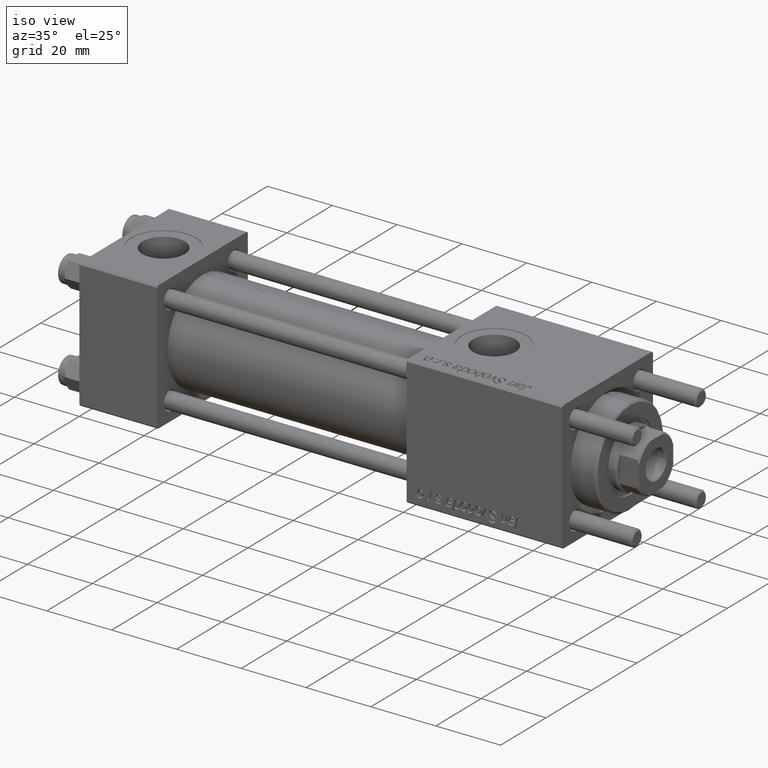
[diagram: clean part render]
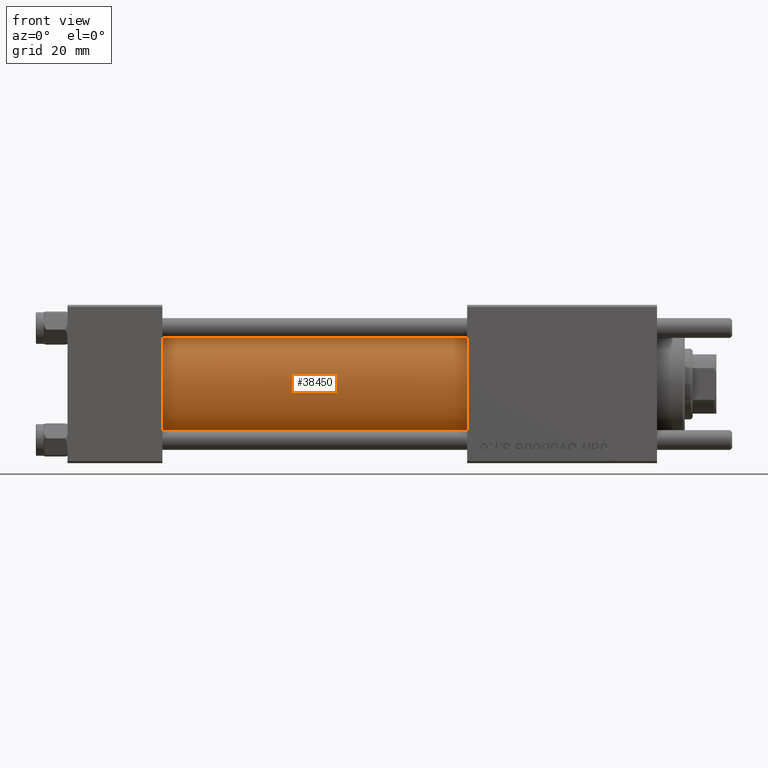
[diagram: tour spotlight — one face highlighted and labeled with its STEP entity id]
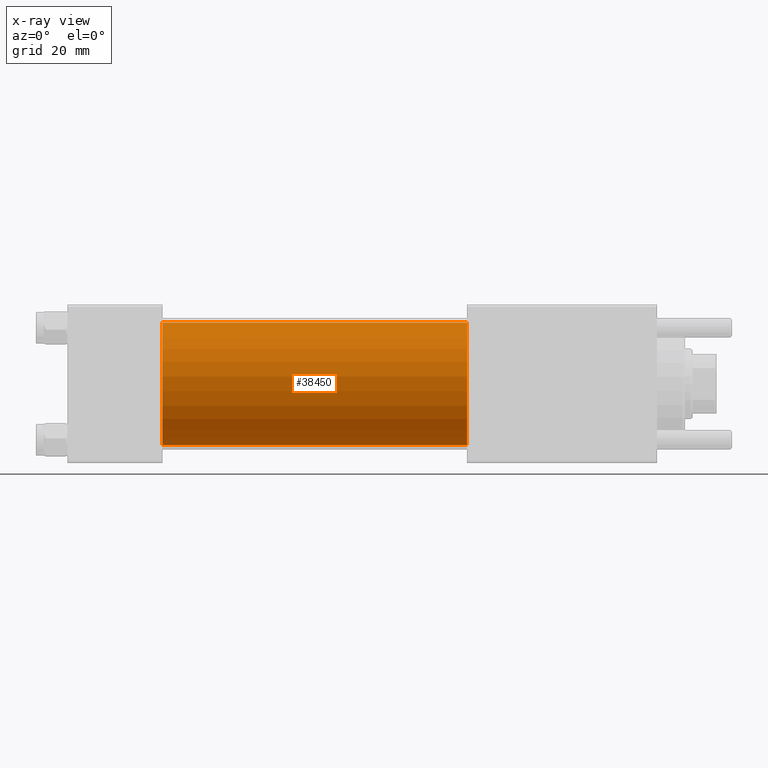
[diagram: x-ray of the same camera — body ghosted, this tour face saturated]
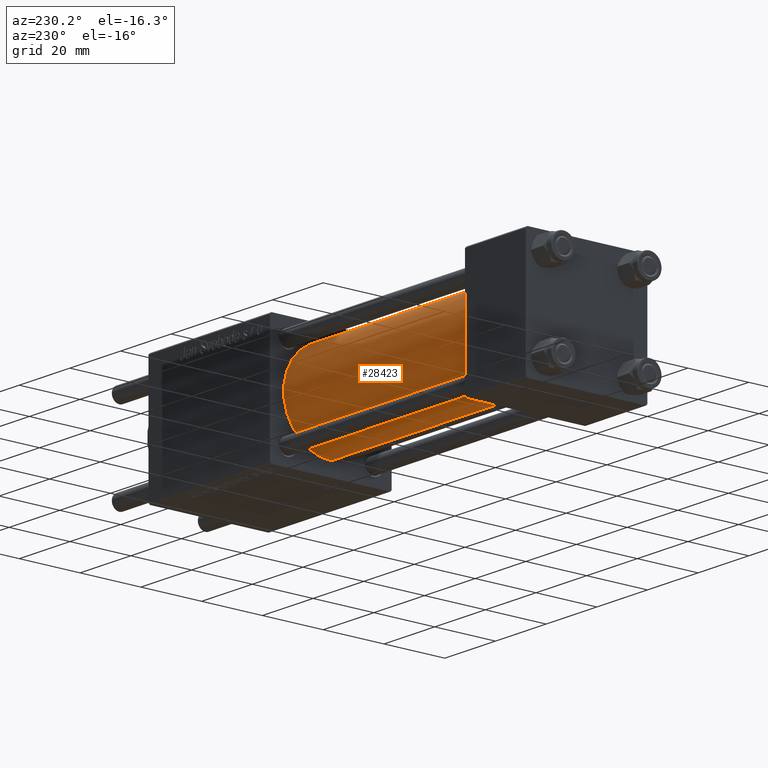
[diagram: tour spotlight — one face highlighted and labeled with its STEP entity id]
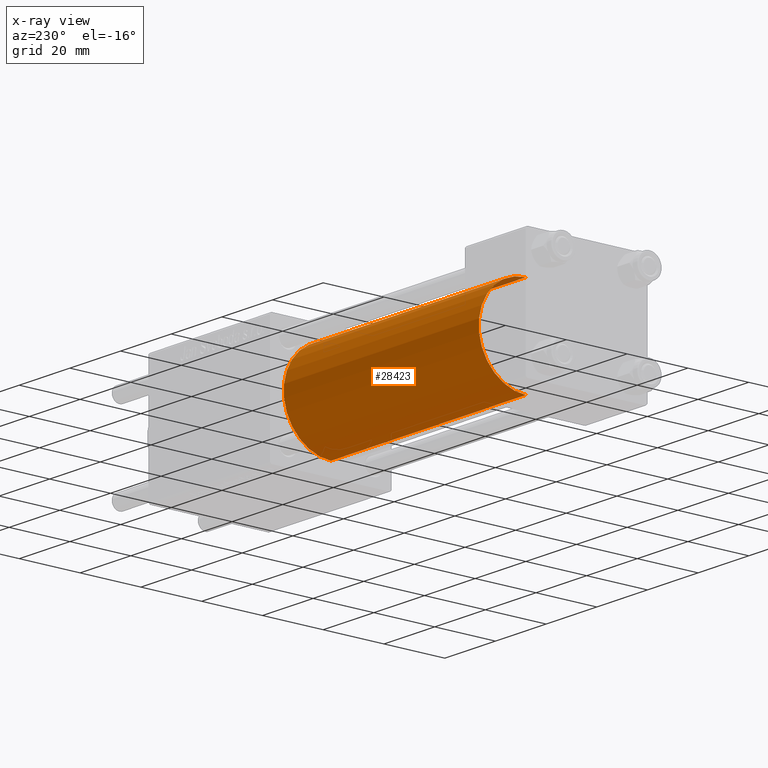
[diagram: x-ray of the same camera — body ghosted, this tour face saturated]
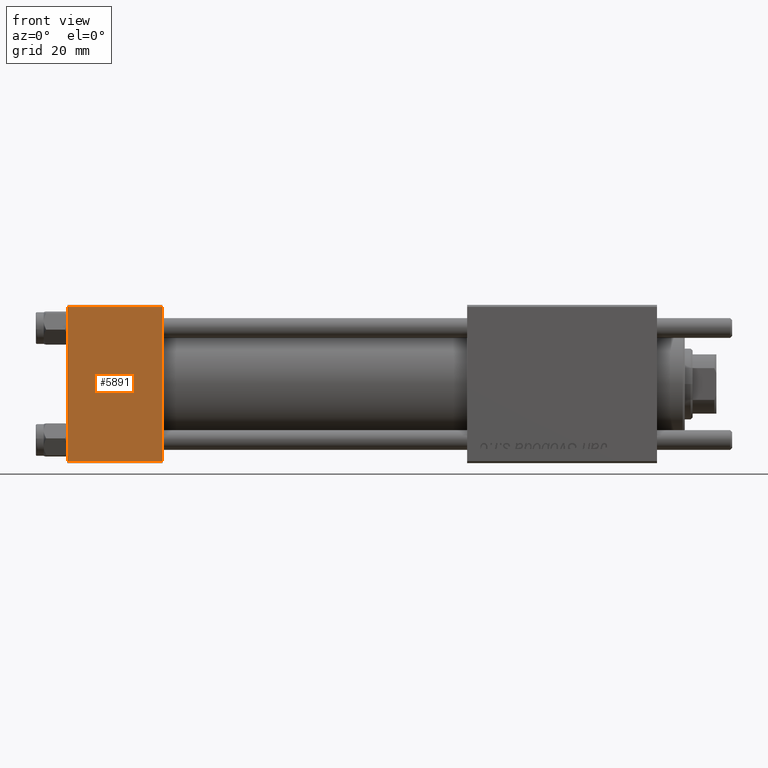
[diagram: tour spotlight — one face highlighted and labeled with its STEP entity id]
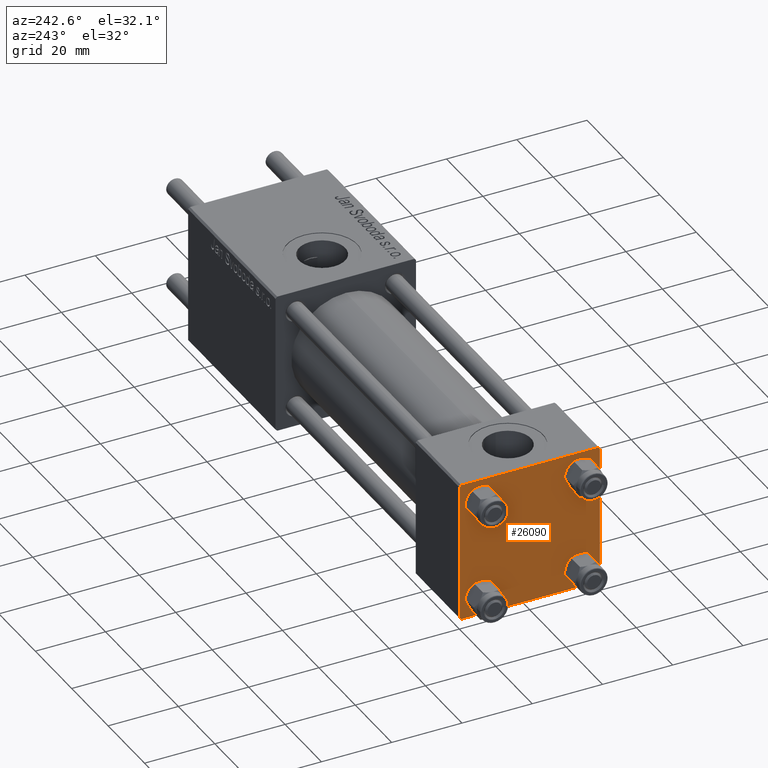
[diagram: tour spotlight — one face highlighted and labeled with its STEP entity id]
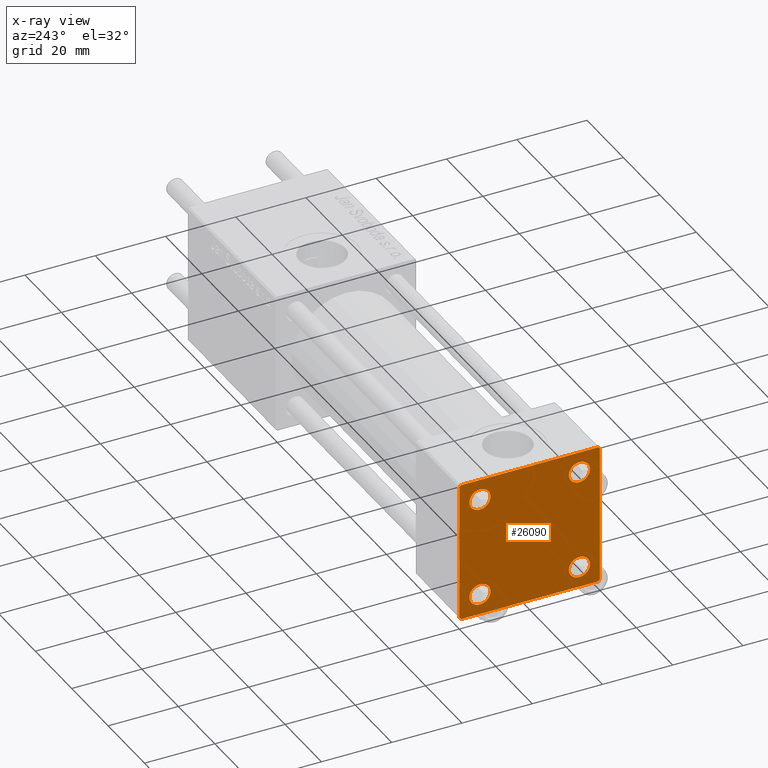
[diagram: x-ray of the same camera — body ghosted, this tour face saturated]
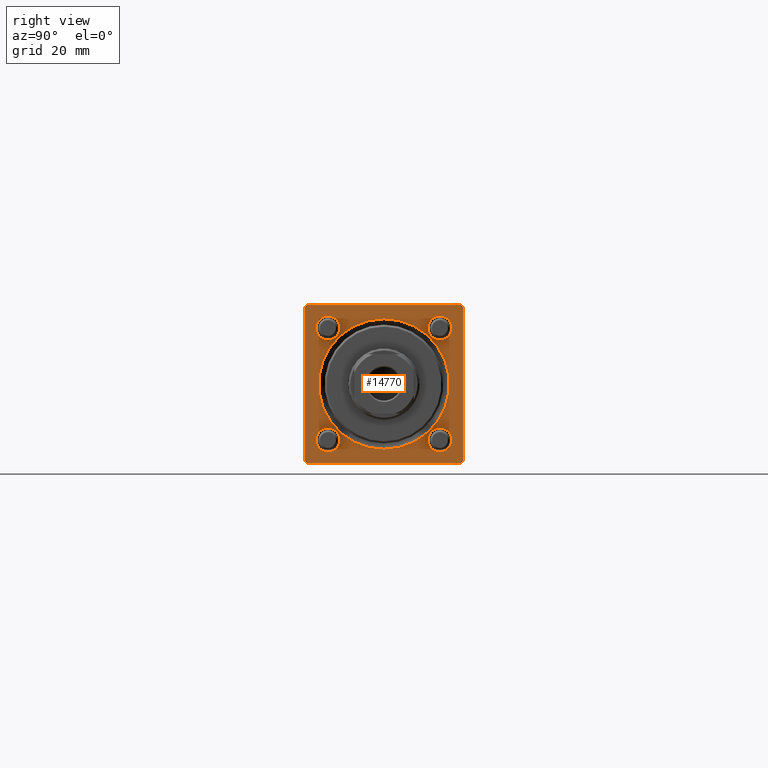
[diagram: tour spotlight — one face highlighted and labeled with its STEP entity id]
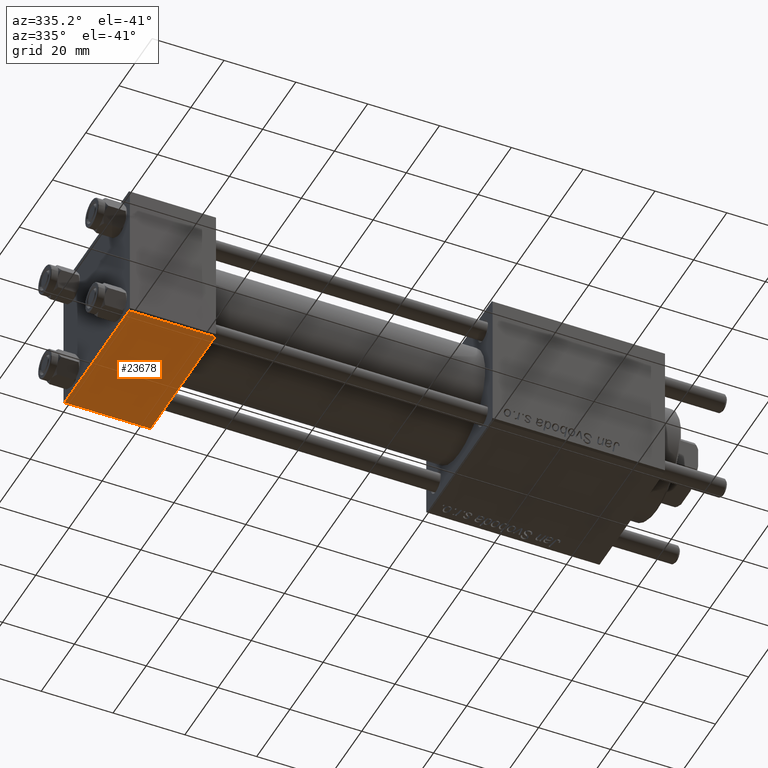
[diagram: tour spotlight — one face highlighted and labeled with its STEP entity id]
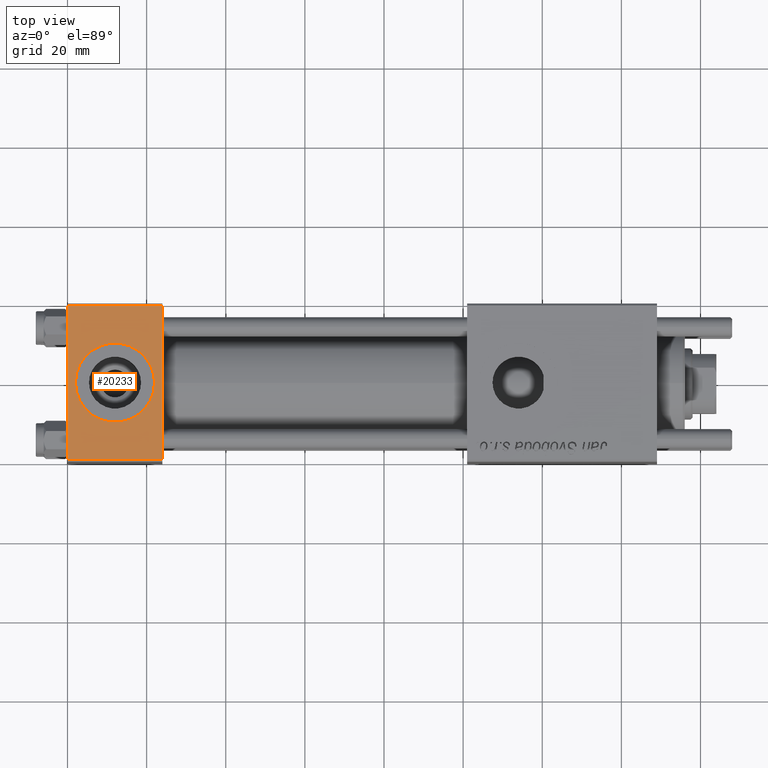
[diagram: tour spotlight — one face highlighted and labeled with its STEP entity id]
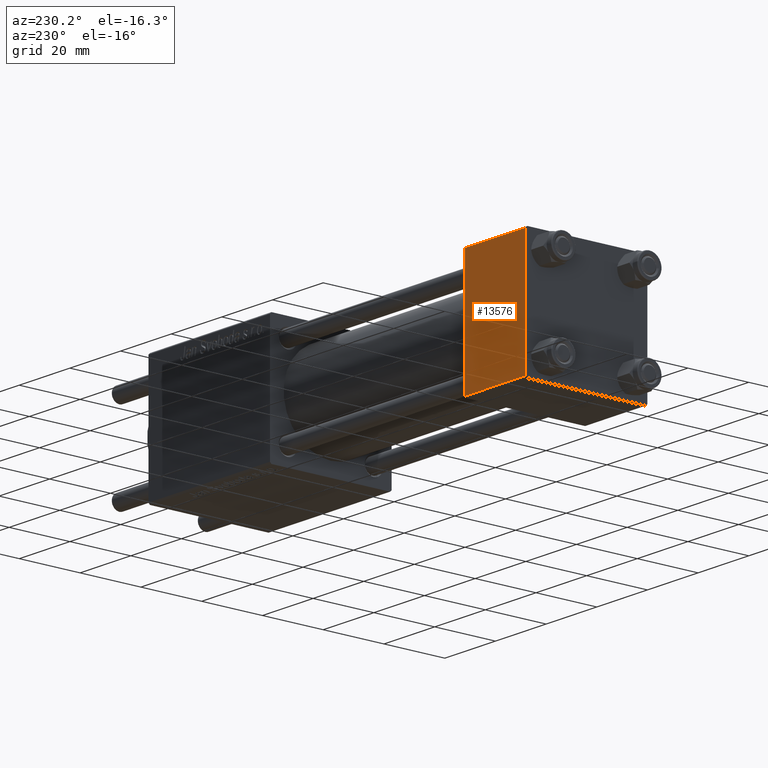
[diagram: tour spotlight — one face highlighted and labeled with its STEP entity id]
A machine part: a face-by-face anatomy tour. The part has 1152 B-rep faces; the first image is the clean iso view, then the 8 largest visible faces are spotlighted one at a time (largest first), each with its STEP entity span.

Face 1 — front view, entity #38450. An x-ray twin of the same camera follows (body ghosted, this face saturated) — the face is partly hidden behind the body. In plain terms, the highlighted cylindrical surface (partial cylindrical patch) has radius 15.5 mm, axis along (-1, -0, -0).
Definition (entity closure, byte-faithful):
#263 = CARTESIAN_POINT ( 'NONE',  ( 23.99999999999999289, -2.602085213965210642E-15, 0.000000000000000000 ) ) ;
#497 = CIRCLE ( 'NONE', #1441, 15.50000000000000000 ) ;
#1441 = AXIS2_PLACEMENT_3D ( 'NONE', #11190, #37558, #50757 ) ;
#3543 = CARTESIAN_POINT ( 'NONE',  ( 23.99999999999999289, -2.602085213965210642E-15, 15.50000000000000000 ) ) ;
#5627 = LINE ( 'NONE', #27134, #13993 ) ;
#6740 = CARTESIAN_POINT ( 'NONE',  ( 101.0000000000000000, -7.038826752868131828E-16, -15.50000000000000000 ) ) ;
#8588 = DIRECTION ( 'NONE',  ( 0.000000000000000000, 0.000000000000000000, 1.000000000000000000 ) ) ;
#9224 = CARTESIAN_POINT ( 'NONE',  ( 101.0000000000000000, -2.602085213965210642E-15, 15.50000000000000000 ) ) ;
#9544 = DIRECTION ( 'NONE',  ( 0.000000000000000000, 0.000000000000000000, 1.000000000000000000 ) ) ;
#11190 = CARTESIAN_POINT ( 'NONE',  ( 101.0000000000000000, -2.602085213965210642E-15, 0.000000000000000000 ) ) ;
#13133 = ORIENTED_EDGE ( 'NONE', *, *, #19613, .T. ) ;
#13993 = VECTOR ( 'NONE', #40299, 1000.000000000000000 ) ;
#19275 = CARTESIAN_POINT ( 'NONE',  ( 101.0000000000000000, -2.602085213965210642E-15, 0.000000000000000000 ) ) ;
#19342 = DIRECTION ( 'NONE',  ( -1.000000000000000000, -0.000000000000000000, -0.000000000000000000 ) ) ;
#19613 = EDGE_CURVE ( 'NONE', #52260, #55741, #23282, .T. ) ;
#20950 = AXIS2_PLACEMENT_3D ( 'NONE', #19275, #36192, #9544 ) ;
#23282 = CIRCLE ( 'NONE', #55359, 15.50000000000000000 ) ;
#27134 = CARTESIAN_POINT ( 'NONE',  ( 101.0000000000000000, -2.602085213965210642E-15, 15.50000000000000000 ) ) ;
#27263 = ORIENTED_EDGE ( 'NONE', *, *, #36499, .F. ) ;
#30305 = ORIENTED_EDGE ( 'NONE', *, *, #55545, .F. ) ;
#31503 = DIRECTION ( 'NONE',  ( 1.000000000000000000, 0.000000000000000000, 0.000000000000000000 ) ) ;
#33787 = ORIENTED_EDGE ( 'NONE', *, *, #42768, .T. ) ;
#34481 = VERTEX_POINT ( 'NONE', #9224 ) ;
#36192 = DIRECTION ( 'NONE',  ( -1.000000000000000000, -0.000000000000000000, -0.000000000000000000 ) ) ;
#36233 = VERTEX_POINT ( 'NONE', #41192 ) ;
#36499 = EDGE_CURVE ( 'NONE', #36233, #55741, #49746, .T. ) ;
#37558 = DIRECTION ( 'NONE',  ( 1.000000000000000000, 0.000000000000000000, 0.000000000000000000 ) ) ;
#38450 = ADVANCED_FACE ( 'NONE', ( #53976 ), #45660, .T. ) ;
#40299 = DIRECTION ( 'NONE',  ( -1.000000000000000000, -0.000000000000000000, -0.000000000000000000 ) ) ;
#41192 = CARTESIAN_POINT ( 'NONE',  ( 101.0000000000000000, -7.038826752868131828E-16, -15.50000000000000000 ) ) ;
#42074 = CARTESIAN_POINT ( 'NONE',  ( 23.99999999999999289, -7.038826752868131828E-16, -15.50000000000000000 ) ) ;
#42768 = EDGE_CURVE ( 'NONE', #34481, #52260, #5627, .T. ) ;
#45660 = CYLINDRICAL_SURFACE ( 'NONE', #20950, 15.50000000000000000 ) ;
#47496 = VECTOR ( 'NONE', #19342, 1000.000000000000000 ) ;
#49746 = LINE ( 'NONE', #6740, #47496 ) ;
#50757 = DIRECTION ( 'NONE',  ( 0.000000000000000000, 0.000000000000000000, -1.000000000000000000 ) ) ;
#52260 = VERTEX_POINT ( 'NONE', #3543 ) ;
#53976 = FACE_OUTER_BOUND ( 'NONE', #54900, .T. ) ;
#54900 = EDGE_LOOP ( 'NONE', ( #27263, #30305, #33787, #13133 ) ) ;
#55359 = AXIS2_PLACEMENT_3D ( 'NONE', #263, #31503, #8588 ) ;
#55545 = EDGE_CURVE ( 'NONE', #34481, #36233, #497, .T. ) ;
#55741 = VERTEX_POINT ( 'NONE', #42074 ) ;

Face 2 — auxiliary view, entity #28423. An x-ray twin of the same camera follows (body ghosted, this face saturated) — the face is partly hidden behind the body. In plain terms, the highlighted cylindrical surface (partial cylindrical patch) has radius 15.5 mm, axis along (-1, -0, -0).
Definition (entity closure, byte-faithful):
#2570 = CARTESIAN_POINT ( 'NONE',  ( 101.0000000000000000, -2.602085213965210642E-15, 0.000000000000000000 ) ) ;
#3543 = CARTESIAN_POINT ( 'NONE',  ( 23.99999999999999289, -2.602085213965210642E-15, 15.50000000000000000 ) ) ;
#5627 = LINE ( 'NONE', #27134, #13993 ) ;
#6740 = CARTESIAN_POINT ( 'NONE',  ( 101.0000000000000000, -7.038826752868131828E-16, -15.50000000000000000 ) ) ;
#8330 = DIRECTION ( 'NONE',  ( 0.000000000000000000, 0.000000000000000000, 1.000000000000000000 ) ) ;
#8896 = DIRECTION ( 'NONE',  ( 1.000000000000000000, 0.000000000000000000, 0.000000000000000000 ) ) ;
#9224 = CARTESIAN_POINT ( 'NONE',  ( 101.0000000000000000, -2.602085213965210642E-15, 15.50000000000000000 ) ) ;
#11482 = AXIS2_PLACEMENT_3D ( 'NONE', #17487, #8896, #8330 ) ;
#13993 = VECTOR ( 'NONE', #40299, 1000.000000000000000 ) ;
#14409 = AXIS2_PLACEMENT_3D ( 'NONE', #2570, #20313, #19468 ) ;
#17487 = CARTESIAN_POINT ( 'NONE',  ( 23.99999999999999289, -2.602085213965210642E-15, 0.000000000000000000 ) ) ;
#19342 = DIRECTION ( 'NONE',  ( -1.000000000000000000, -0.000000000000000000, -0.000000000000000000 ) ) ;
#19468 = DIRECTION ( 'NONE',  ( 0.000000000000000000, 0.000000000000000000, -1.000000000000000000 ) ) ;
#20313 = DIRECTION ( 'NONE',  ( 1.000000000000000000, 0.000000000000000000, 0.000000000000000000 ) ) ;
#27134 = CARTESIAN_POINT ( 'NONE',  ( 101.0000000000000000, -2.602085213965210642E-15, 15.50000000000000000 ) ) ;
#27759 = EDGE_CURVE ( 'NONE', #55741, #52260, #34343, .T. ) ;
#28423 = ADVANCED_FACE ( 'NONE', ( #42182 ), #37322, .T. ) ;
#34343 = CIRCLE ( 'NONE', #11482, 15.50000000000000000 ) ;
#34481 = VERTEX_POINT ( 'NONE', #9224 ) ;
#34853 = EDGE_CURVE ( 'NONE', #36233, #34481, #39114, .T. ) ;
#35483 = ORIENTED_EDGE ( 'NONE', *, *, #36499, .T. ) ;
#36233 = VERTEX_POINT ( 'NONE', #41192 ) ;
#36499 = EDGE_CURVE ( 'NONE', #36233, #55741, #49746, .T. ) ;
#37322 = CYLINDRICAL_SURFACE ( 'NONE', #55480, 15.50000000000000000 ) ;
#38587 = ORIENTED_EDGE ( 'NONE', *, *, #27759, .T. ) ;
#39114 = CIRCLE ( 'NONE', #14409, 15.50000000000000000 ) ;
#39989 = ORIENTED_EDGE ( 'NONE', *, *, #42768, .F. ) ;
#40299 = DIRECTION ( 'NONE',  ( -1.000000000000000000, -0.000000000000000000, -0.000000000000000000 ) ) ;
#41192 = CARTESIAN_POINT ( 'NONE',  ( 101.0000000000000000, -7.038826752868131828E-16, -15.50000000000000000 ) ) ;
#41622 = DIRECTION ( 'NONE',  ( 0.000000000000000000, 0.000000000000000000, 1.000000000000000000 ) ) ;
#42074 = CARTESIAN_POINT ( 'NONE',  ( 23.99999999999999289, -7.038826752868131828E-16, -15.50000000000000000 ) ) ;
#42182 = FACE_OUTER_BOUND ( 'NONE', #51132, .T. ) ;
#42768 = EDGE_CURVE ( 'NONE', #34481, #52260, #5627, .T. ) ;
#47012 = ORIENTED_EDGE ( 'NONE', *, *, #34853, .F. ) ;
#47496 = VECTOR ( 'NONE', #19342, 1000.000000000000000 ) ;
#49746 = LINE ( 'NONE', #6740, #47496 ) ;
#51132 = EDGE_LOOP ( 'NONE', ( #47012, #35483, #38587, #39989 ) ) ;
#52260 = VERTEX_POINT ( 'NONE', #3543 ) ;
#54825 = CARTESIAN_POINT ( 'NONE',  ( 101.0000000000000000, -2.602085213965210642E-15, 0.000000000000000000 ) ) ;
#55480 = AXIS2_PLACEMENT_3D ( 'NONE', #54825, #55667, #41622 ) ;
#55667 = DIRECTION ( 'NONE',  ( -1.000000000000000000, -0.000000000000000000, -0.000000000000000000 ) ) ;
#55741 = VERTEX_POINT ( 'NONE', #42074 ) ;

Face 3 — front view, entity #5891. In plain terms, the highlighted planar face has unit normal (0, 1, 0).
Definition (entity closure, byte-faithful):
#673 = CARTESIAN_POINT ( 'NONE',  ( 24.00000000000000000, -20.00000000000000355, 19.99999999999998934 ) ) ;
#1930 = DIRECTION ( 'NONE',  ( 1.000000000000000000, 0.000000000000000000, 0.000000000000000000 ) ) ;
#3818 = DIRECTION ( 'NONE',  ( -1.000000000000000000, 0.000000000000000000, 0.000000000000000000 ) ) ;
#4915 = VECTOR ( 'NONE', #4967, 1000.000000000000000 ) ;
#4967 = DIRECTION ( 'NONE',  ( 0.000000000000000000, 8.673617379884036705E-17, -1.000000000000000000 ) ) ;
#5891 = ADVANCED_FACE ( 'NONE', ( #47590 ), #8298, .F. ) ;
#6246 = CARTESIAN_POINT ( 'NONE',  ( 24.00000000000000000, -20.00000000000000000, -19.49999999999999645 ) ) ;
#8298 = PLANE ( 'NONE',  #15742 ) ;
#8662 = VERTEX_POINT ( 'NONE', #10591 ) ;
#9487 = EDGE_CURVE ( 'NONE', #28089, #39653, #55709, .T. ) ;
#10591 = CARTESIAN_POINT ( 'NONE',  ( 24.00000000000000000, -20.00000000000000355, 19.49999999999998224 ) ) ;
#13005 = EDGE_CURVE ( 'NONE', #8662, #28089, #43366, .T. ) ;
#14834 = LINE ( 'NONE', #6246, #44391 ) ;
#15742 = AXIS2_PLACEMENT_3D ( 'NONE', #18803, #52732, #53791 ) ;
#16219 = ORIENTED_EDGE ( 'NONE', *, *, #9487, .T. ) ;
#16422 = DIRECTION ( 'NONE',  ( 0.000000000000000000, 8.673617379884036705E-17, -1.000000000000000000 ) ) ;
#18803 = CARTESIAN_POINT ( 'NONE',  ( 24.00000000000000000, -20.00000000000000355, 19.99999999999998934 ) ) ;
#21013 = CARTESIAN_POINT ( 'NONE',  ( 24.00000000000000000, -20.00000000000000355, 19.49999999999998224 ) ) ;
#23277 = ORIENTED_EDGE ( 'NONE', *, *, #50377, .F. ) ;
#23345 = CARTESIAN_POINT ( 'NONE',  ( 0.000000000000000000, -20.00000000000000355, 19.49999999999998224 ) ) ;
#24509 = EDGE_LOOP ( 'NONE', ( #16219, #42533, #23277, #55454 ) ) ;
#25015 = CARTESIAN_POINT ( 'NONE',  ( 0.000000000000000000, -20.00000000000000000, -19.49999999999999645 ) ) ;
#25592 = CARTESIAN_POINT ( 'NONE',  ( 0.000000000000000000, -20.00000000000000355, 19.99999999999998934 ) ) ;
#28089 = VERTEX_POINT ( 'NONE', #23345 ) ;
#34102 = VECTOR ( 'NONE', #3818, 1000.000000000000000 ) ;
#39653 = VERTEX_POINT ( 'NONE', #25015 ) ;
#42533 = ORIENTED_EDGE ( 'NONE', *, *, #53592, .T. ) ;
#43150 = VECTOR ( 'NONE', #16422, 1000.000000000000000 ) ;
#43366 = LINE ( 'NONE', #21013, #34102 ) ;
#44391 = VECTOR ( 'NONE', #1930, 1000.000000000000000 ) ;
#47590 = FACE_OUTER_BOUND ( 'NONE', #24509, .T. ) ;
#50377 = EDGE_CURVE ( 'NONE', #8662, #54315, #53417, .T. ) ;
#52732 = DIRECTION ( 'NONE',  ( -0.000000000000000000, 1.000000000000000000, 8.673617379884036705E-17 ) ) ;
#52781 = CARTESIAN_POINT ( 'NONE',  ( 24.00000000000000000, -20.00000000000000000, -19.49999999999999645 ) ) ;
#53417 = LINE ( 'NONE', #673, #4915 ) ;
#53592 = EDGE_CURVE ( 'NONE', #39653, #54315, #14834, .T. ) ;
#53791 = DIRECTION ( 'NONE',  ( 0.000000000000000000, -8.673617379884036705E-17, 1.000000000000000000 ) ) ;
#54315 = VERTEX_POINT ( 'NONE', #52781 ) ;
#55454 = ORIENTED_EDGE ( 'NONE', *, *, #13005, .T. ) ;
#55709 = LINE ( 'NONE', #25592, #43150 ) ;

Face 4 — auxiliary view, entity #26090. An x-ray twin of the same camera follows (body ghosted, this face saturated) — the face is partly hidden behind the body. In plain terms, the highlighted planar face has unit normal (-1, 0, 0).
Definition (entity closure, byte-faithful):
#411 = AXIS2_PLACEMENT_3D ( 'NONE', #51893, #56459, #47306 ) ;
#654 = VECTOR ( 'NONE', #42978, 1000.000000000000000 ) ;
#711 = CARTESIAN_POINT ( 'NONE',  ( 0.000000000000000000, 19.50000000000000711, -20.00000000000000711 ) ) ;
#812 = EDGE_LOOP ( 'NONE', ( #7277, #39779 ) ) ;
#869 = CARTESIAN_POINT ( 'NONE',  ( 0.000000000000000000, 14.14999999999999858, 14.15000000000000036 ) ) ;
#1004 = EDGE_CURVE ( 'NONE', #49745, #28415, #50628, .T. ) ;
#1192 = VECTOR ( 'NONE', #44678, 999.9999999999998863 ) ;
#1265 = ORIENTED_EDGE ( 'NONE', *, *, #4506, .T. ) ;
#1394 = AXIS2_PLACEMENT_3D ( 'NONE', #869, #26675, #31268 ) ;
#1519 = DIRECTION ( 'NONE',  ( 0.000000000000000000, -0.7071067811865401342, 0.7071067811865549002 ) ) ;
#2431 = EDGE_CURVE ( 'NONE', #28089, #45421, #31694, .T. ) ;
#3030 = ORIENTED_EDGE ( 'NONE', *, *, #54554, .T. ) ;
#3447 = FACE_OUTER_BOUND ( 'NONE', #18750, .T. ) ;
#3644 = DIRECTION ( 'NONE',  ( 1.000000000000000000, 0.000000000000000000, 0.000000000000000000 ) ) ;
#3988 = CIRCLE ( 'NONE', #14038, 2.999999999999983569 ) ;
#4446 = VERTEX_POINT ( 'NONE', #6186 ) ;
#4506 = EDGE_CURVE ( 'NONE', #29128, #47571, #12946, .T. ) ;
#4508 = ORIENTED_EDGE ( 'NONE', *, *, #27349, .T. ) ;
#4637 = VECTOR ( 'NONE', #15849, 1000.000000000000000 ) ;
#4686 = DIRECTION ( 'NONE',  ( 1.000000000000000000, 0.000000000000000000, 0.000000000000000000 ) ) ;
#4735 = CARTESIAN_POINT ( 'NONE',  ( 0.000000000000000000, -19.50000000000000711, -20.00000000000000000 ) ) ;
#5412 = CARTESIAN_POINT ( 'NONE',  ( -0.000000000000000000, 19.75000000000013500, 19.74999999999986144 ) ) ;
#5430 = CARTESIAN_POINT ( 'NONE',  ( 0.000000000000000000, -19.49999999999999289, 19.99999999999998934 ) ) ;
#6186 = CARTESIAN_POINT ( 'NONE',  ( 0.000000000000000000, 19.50000000000000000, 20.00000000000000000 ) ) ;
#6698 = ORIENTED_EDGE ( 'NONE', *, *, #42332, .T. ) ;
#7262 = VERTEX_POINT ( 'NONE', #4735 ) ;
#7267 = VERTEX_POINT ( 'NONE', #38862 ) ;
#7277 = ORIENTED_EDGE ( 'NONE', *, *, #17217, .T. ) ;
#7674 = VERTEX_POINT ( 'NONE', #49960 ) ;
#7888 = EDGE_LOOP ( 'NONE', ( #53905, #1265 ) ) ;
#8285 = CARTESIAN_POINT ( 'NONE',  ( 0.000000000000000000, 20.00000000000000000, -20.00000000000000711 ) ) ;
#9487 = EDGE_CURVE ( 'NONE', #28089, #39653, #55709, .T. ) ;
#9634 = VERTEX_POINT ( 'NONE', #15525 ) ;
#10370 = ORIENTED_EDGE ( 'NONE', *, *, #9487, .F. ) ;
#10742 = VECTOR ( 'NONE', #1519, 1000.000000000000000 ) ;
#10940 = DIRECTION ( 'NONE',  ( 0.000000000000000000, -1.000000000000000000, -2.602085213965210149E-16 ) ) ;
#11500 = CARTESIAN_POINT ( 'NONE',  ( 0.000000000000000000, -14.14999999999999503, -14.15000000000000391 ) ) ;
#11586 = LINE ( 'NONE', #54607, #45344 ) ;
#12629 = ORIENTED_EDGE ( 'NONE', *, *, #20460, .F. ) ;
#12946 = CIRCLE ( 'NONE', #44985, 3.000000000000004441 ) ;
#14038 = AXIS2_PLACEMENT_3D ( 'NONE', #24012, #41502, #33186 ) ;
#15073 = VECTOR ( 'NONE', #49186, 1000.000000000000114 ) ;
#15525 = CARTESIAN_POINT ( 'NONE',  ( 0.000000000000000000, 20.00000000000000000, 19.49999999999999289 ) ) ;
#15849 = DIRECTION ( 'NONE',  ( -0.000000000000000000, -0.7071067811865524577, -0.7071067811865426878 ) ) ;
#16051 = CARTESIAN_POINT ( 'NONE',  ( 0.000000000000000000, 14.14999999999999858, 14.15000000000000036 ) ) ;
#16422 = DIRECTION ( 'NONE',  ( 0.000000000000000000, 8.673617379884036705E-17, -1.000000000000000000 ) ) ;
#16896 = FACE_BOUND ( 'NONE', #28344, .T. ) ;
#16902 = EDGE_CURVE ( 'NONE', #7267, #36343, #3988, .T. ) ;
#17217 = EDGE_CURVE ( 'NONE', #36343, #7267, #33289, .T. ) ;
#17926 = ORIENTED_EDGE ( 'NONE', *, *, #32802, .T. ) ;
#18750 = EDGE_LOOP ( 'NONE', ( #4508, #32372, #37681, #32744, #10370, #22397, #12629, #6698 ) ) ;
#19814 = CARTESIAN_POINT ( 'NONE',  ( 0.000000000000000000, 20.00000000000000000, 20.00000000000000000 ) ) ;
#20460 = EDGE_CURVE ( 'NONE', #4446, #45421, #41891, .T. ) ;
#22094 = DIRECTION ( 'NONE',  ( 0.000000000000000000, 0.000000000000000000, 1.000000000000000000 ) ) ;
#22158 = CARTESIAN_POINT ( 'NONE',  ( 0.000000000000000000, -14.14999999999999503, -14.15000000000000391 ) ) ;
#22397 = ORIENTED_EDGE ( 'NONE', *, *, #2431, .T. ) ;
#22676 = CARTESIAN_POINT ( 'NONE',  ( 0.000000000000000000, -14.14999999999999503, 17.14999999999998792 ) ) ;
#23345 = CARTESIAN_POINT ( 'NONE',  ( 0.000000000000000000, -20.00000000000000355, 19.49999999999998224 ) ) ;
#24004 = DIRECTION ( 'NONE',  ( 0.000000000000000000, 0.000000000000000000, 1.000000000000000000 ) ) ;
#24012 = CARTESIAN_POINT ( 'NONE',  ( 0.000000000000000000, 14.14999999999999858, -14.15000000000000036 ) ) ;
#24586 = CARTESIAN_POINT ( 'NONE',  ( 0.000000000000000000, -14.14999999999999503, 14.15000000000000391 ) ) ;
#24587 = ORIENTED_EDGE ( 'NONE', *, *, #38062, .T. ) ;
#24907 = CARTESIAN_POINT ( 'NONE',  ( 0.000000000000000000, -14.14999999999999503, -17.15000000000000924 ) ) ;
#25015 = CARTESIAN_POINT ( 'NONE',  ( 0.000000000000000000, -20.00000000000000000, -19.49999999999999645 ) ) ;
#25044 = DIRECTION ( 'NONE',  ( 0.000000000000000000, 0.000000000000000000, -1.000000000000000000 ) ) ;
#25065 = AXIS2_PLACEMENT_3D ( 'NONE', #11500, #54516, #49930 ) ;
#25575 = DIRECTION ( 'NONE',  ( 1.000000000000000000, 0.000000000000000000, 0.000000000000000000 ) ) ;
#25592 = CARTESIAN_POINT ( 'NONE',  ( 0.000000000000000000, -20.00000000000000355, 19.99999999999998934 ) ) ;
#26058 = DIRECTION ( 'NONE',  ( 1.000000000000000000, 0.000000000000000000, 0.000000000000000000 ) ) ;
#26090 = ADVANCED_FACE ( 'NONE', ( #48142, #42707, #52443, #16896, #3447 ), #30368, .T. ) ;
#26116 = CIRCLE ( 'NONE', #1394, 2.999999999999983569 ) ;
#26134 = CARTESIAN_POINT ( 'NONE',  ( 0.000000000000000000, 14.14999999999999858, -14.15000000000000036 ) ) ;
#26675 = DIRECTION ( 'NONE',  ( 1.000000000000000000, 0.000000000000000000, 0.000000000000000000 ) ) ;
#27296 = VERTEX_POINT ( 'NONE', #711 ) ;
#27349 = EDGE_CURVE ( 'NONE', #9634, #7674, #11586, .T. ) ;
#28089 = VERTEX_POINT ( 'NONE', #23345 ) ;
#28344 = EDGE_LOOP ( 'NONE', ( #3030, #43167 ) ) ;
#28415 = VERTEX_POINT ( 'NONE', #44494 ) ;
#28892 = DIRECTION ( 'NONE',  ( 0.000000000000000000, 0.000000000000000000, 1.000000000000000000 ) ) ;
#29128 = VERTEX_POINT ( 'NONE', #24907 ) ;
#30368 = PLANE ( 'NONE',  #411 ) ;
#31118 = CARTESIAN_POINT ( 'NONE',  ( 0.000000000000000000, 14.14999999999999858, -11.15000000000001812 ) ) ;
#31192 = CARTESIAN_POINT ( 'NONE',  ( 0.000000000000000000, -14.14999999999999503, -11.15000000000000036 ) ) ;
#31268 = DIRECTION ( 'NONE',  ( 0.000000000000000000, 0.000000000000000000, 1.000000000000000000 ) ) ;
#31694 = LINE ( 'NONE', #44580, #15073 ) ;
#32354 = LINE ( 'NONE', #5412, #1192 ) ;
#32372 = ORIENTED_EDGE ( 'NONE', *, *, #39659, .T. ) ;
#32744 = ORIENTED_EDGE ( 'NONE', *, *, #32958, .T. ) ;
#32802 = EDGE_CURVE ( 'NONE', #40729, #46038, #46431, .T. ) ;
#32958 = EDGE_CURVE ( 'NONE', #7262, #39653, #37338, .T. ) ;
#33186 = DIRECTION ( 'NONE',  ( 0.000000000000000000, 0.000000000000000000, 1.000000000000000000 ) ) ;
#33217 = AXIS2_PLACEMENT_3D ( 'NONE', #16051, #26058, #38668 ) ;
#33289 = CIRCLE ( 'NONE', #40591, 2.999999999999983569 ) ;
#33342 = EDGE_CURVE ( 'NONE', #27296, #7262, #39501, .T. ) ;
#35107 = CIRCLE ( 'NONE', #25065, 3.000000000000004441 ) ;
#36343 = VERTEX_POINT ( 'NONE', #31118 ) ;
#37338 = LINE ( 'NONE', #49973, #10742 ) ;
#37681 = ORIENTED_EDGE ( 'NONE', *, *, #33342, .T. ) ;
#38062 = EDGE_CURVE ( 'NONE', #46038, #40729, #44759, .T. ) ;
#38668 = DIRECTION ( 'NONE',  ( 0.000000000000000000, 0.000000000000000000, 1.000000000000000000 ) ) ;
#38831 = CARTESIAN_POINT ( 'NONE',  ( 0.000000000000000000, 14.14999999999999858, 11.15000000000001990 ) ) ;
#38862 = CARTESIAN_POINT ( 'NONE',  ( 0.000000000000000000, 14.14999999999999858, -17.14999999999998437 ) ) ;
#39062 = CARTESIAN_POINT ( 'NONE',  ( 0.000000000000000000, -14.14999999999999503, 11.15000000000002345 ) ) ;
#39501 = LINE ( 'NONE', #8285, #654 ) ;
#39653 = VERTEX_POINT ( 'NONE', #25015 ) ;
#39659 = EDGE_CURVE ( 'NONE', #7674, #27296, #42504, .T. ) ;
#39779 = ORIENTED_EDGE ( 'NONE', *, *, #16902, .T. ) ;
#40591 = AXIS2_PLACEMENT_3D ( 'NONE', #26134, #25575, #22094 ) ;
#40729 = VERTEX_POINT ( 'NONE', #22676 ) ;
#41502 = DIRECTION ( 'NONE',  ( 1.000000000000000000, 0.000000000000000000, 0.000000000000000000 ) ) ;
#41842 = AXIS2_PLACEMENT_3D ( 'NONE', #24586, #54702, #24004 ) ;
#41891 = LINE ( 'NONE', #19814, #53544 ) ;
#42332 = EDGE_CURVE ( 'NONE', #4446, #9634, #32354, .T. ) ;
#42504 = LINE ( 'NONE', #55138, #4637 ) ;
#42707 = FACE_BOUND ( 'NONE', #7888, .T. ) ;
#42978 = DIRECTION ( 'NONE',  ( 0.000000000000000000, -1.000000000000000000, 1.734723475976807094E-16 ) ) ;
#43150 = VECTOR ( 'NONE', #16422, 1000.000000000000000 ) ;
#43167 = ORIENTED_EDGE ( 'NONE', *, *, #1004, .T. ) ;
#44494 = CARTESIAN_POINT ( 'NONE',  ( 0.000000000000000000, 14.14999999999999858, 17.14999999999998437 ) ) ;
#44580 = CARTESIAN_POINT ( 'NONE',  ( -0.000000000000000000, -19.74999999999992539, 19.75000000000006395 ) ) ;
#44678 = DIRECTION ( 'NONE',  ( 0.000000000000000000, 0.7071067811865425767, -0.7071067811865525687 ) ) ;
#44759 = CIRCLE ( 'NONE', #46596, 2.999999999999983569 ) ;
#44800 = DIRECTION ( 'NONE',  ( 0.000000000000000000, 0.000000000000000000, 1.000000000000000000 ) ) ;
#44985 = AXIS2_PLACEMENT_3D ( 'NONE', #22158, #4686, #44800 ) ;
#45344 = VECTOR ( 'NONE', #25044, 1000.000000000000000 ) ;
#45421 = VERTEX_POINT ( 'NONE', #5430 ) ;
#46038 = VERTEX_POINT ( 'NONE', #39062 ) ;
#46431 = CIRCLE ( 'NONE', #41842, 2.999999999999983569 ) ;
#46596 = AXIS2_PLACEMENT_3D ( 'NONE', #46929, #3644, #28892 ) ;
#46929 = CARTESIAN_POINT ( 'NONE',  ( 0.000000000000000000, -14.14999999999999503, 14.15000000000000391 ) ) ;
#47306 = DIRECTION ( 'NONE',  ( -0.000000000000000000, 0.000000000000000000, 1.000000000000000000 ) ) ;
#47475 = EDGE_LOOP ( 'NONE', ( #17926, #24587 ) ) ;
#47571 = VERTEX_POINT ( 'NONE', #31192 ) ;
#48142 = FACE_BOUND ( 'NONE', #47475, .T. ) ;
#49186 = DIRECTION ( 'NONE',  ( -0.000000000000000000, 0.7071067811865500152, 0.7071067811865451302 ) ) ;
#49745 = VERTEX_POINT ( 'NONE', #38831 ) ;
#49850 = EDGE_CURVE ( 'NONE', #47571, #29128, #35107, .T. ) ;
#49930 = DIRECTION ( 'NONE',  ( 0.000000000000000000, 0.000000000000000000, 1.000000000000000000 ) ) ;
#49960 = CARTESIAN_POINT ( 'NONE',  ( 0.000000000000000000, 20.00000000000000000, -19.50000000000002132 ) ) ;
#49973 = CARTESIAN_POINT ( 'NONE',  ( 0.000000000000000000, -19.75000000000020961, -19.74999999999979394 ) ) ;
#50628 = CIRCLE ( 'NONE', #33217, 2.999999999999983569 ) ;
#51893 = CARTESIAN_POINT ( 'NONE',  ( 0.000000000000000000, 0.000000000000000000, 0.000000000000000000 ) ) ;
#52443 = FACE_BOUND ( 'NONE', #812, .T. ) ;
#53544 = VECTOR ( 'NONE', #10940, 1000.000000000000000 ) ;
#53905 = ORIENTED_EDGE ( 'NONE', *, *, #49850, .T. ) ;
#54516 = DIRECTION ( 'NONE',  ( 1.000000000000000000, 0.000000000000000000, 0.000000000000000000 ) ) ;
#54554 = EDGE_CURVE ( 'NONE', #28415, #49745, #26116, .T. ) ;
#54607 = CARTESIAN_POINT ( 'NONE',  ( 0.000000000000000000, 20.00000000000000000, 20.00000000000000000 ) ) ;
#54702 = DIRECTION ( 'NONE',  ( 1.000000000000000000, 0.000000000000000000, 0.000000000000000000 ) ) ;
#55138 = CARTESIAN_POINT ( 'NONE',  ( -0.000000000000000000, 19.74999999999986855, -19.75000000000014211 ) ) ;
#55709 = LINE ( 'NONE', #25592, #43150 ) ;
#56459 = DIRECTION ( 'NONE',  ( -1.000000000000000000, 0.000000000000000000, -0.000000000000000000 ) ) ;

Face 5 — right view, entity #14770. In plain terms, the highlighted planar face has unit normal (-1, 0, 0).
Definition (entity closure, byte-faithful):
#181 = EDGE_CURVE ( 'NONE', #902, #47794, #7596, .T. ) ;
#592 = VERTEX_POINT ( 'NONE', #47155 ) ;
#902 = VERTEX_POINT ( 'NONE', #46455 ) ;
#1377 = EDGE_LOOP ( 'NONE', ( #28763, #6297 ) ) ;
#1796 = FACE_BOUND ( 'NONE', #1377, .T. ) ;
#2199 = CARTESIAN_POINT ( 'NONE',  ( 149.0000000000000284, 19.50000000000001066, -20.00000000000000000 ) ) ;
#2314 = CIRCLE ( 'NONE', #5986, 16.49999999999998579 ) ;
#2767 = CARTESIAN_POINT ( 'NONE',  ( 149.0000000000000284, 19.99999999999999645, -20.00000000000000000 ) ) ;
#3868 = EDGE_CURVE ( 'NONE', #37267, #26147, #30161, .T. ) ;
#4085 = DIRECTION ( 'NONE',  ( -0.000000000000000000, -0.7071067811865474617, -0.7071067811865474617 ) ) ;
#4158 = DIRECTION ( 'NONE',  ( 0.000000000000000000, 0.000000000000000000, 1.000000000000000000 ) ) ;
#5615 = AXIS2_PLACEMENT_3D ( 'NONE', #19525, #50504, #10362 ) ;
#5986 = AXIS2_PLACEMENT_3D ( 'NONE', #42894, #28083, #24058 ) ;
#6297 = ORIENTED_EDGE ( 'NONE', *, *, #42801, .T. ) ;
#6319 = CIRCLE ( 'NONE', #50287, 2.999999999999990674 ) ;
#6622 = AXIS2_PLACEMENT_3D ( 'NONE', #48788, #9510, #26991 ) ;
#6816 = CARTESIAN_POINT ( 'NONE',  ( 149.0000000000000284, -14.15000000000000036, -14.15000000000000036 ) ) ;
#7126 = EDGE_CURVE ( 'NONE', #10103, #52025, #49241, .T. ) ;
#7596 = CIRCLE ( 'NONE', #30474, 2.999999999999987121 ) ;
#7795 = LINE ( 'NONE', #21536, #32386 ) ;
#8083 = DIRECTION ( 'NONE',  ( 0.000000000000000000, -0.7071067811865474617, 0.7071067811865474617 ) ) ;
#8274 = VERTEX_POINT ( 'NONE', #15625 ) ;
#8384 = CARTESIAN_POINT ( 'NONE',  ( 149.0000000000000284, -20.00000000000000355, 19.50000000000002487 ) ) ;
#8568 = VECTOR ( 'NONE', #28864, 1000.000000000000000 ) ;
#9091 = CARTESIAN_POINT ( 'NONE',  ( 149.0000000000000284, -20.00000000000000355, 19.50000000000002487 ) ) ;
#9282 = EDGE_CURVE ( 'NONE', #47794, #902, #28512, .T. ) ;
#9510 = DIRECTION ( 'NONE',  ( -1.000000000000000000, -0.000000000000000000, -0.000000000000000000 ) ) ;
#9670 = DIRECTION ( 'NONE',  ( -0.000000000000000000, 0.7071067811865474617, 0.7071067811865474617 ) ) ;
#9677 = EDGE_CURVE ( 'NONE', #24141, #49223, #14750, .T. ) ;
#9875 = CARTESIAN_POINT ( 'NONE',  ( 149.0000000000000284, 2.020667218593131128E-15, 16.49999999999998579 ) ) ;
#10103 = VERTEX_POINT ( 'NONE', #2199 ) ;
#10362 = DIRECTION ( 'NONE',  ( 0.000000000000000000, 0.000000000000000000, 1.000000000000000000 ) ) ;
#10903 = VECTOR ( 'NONE', #16395, 1000.000000000000000 ) ;
#11113 = DIRECTION ( 'NONE',  ( -1.000000000000000000, -0.000000000000000000, -0.000000000000000000 ) ) ;
#11813 = LINE ( 'NONE', #41924, #10903 ) ;
#11916 = ORIENTED_EDGE ( 'NONE', *, *, #20191, .T. ) ;
#12201 = LINE ( 'NONE', #2767, #8568 ) ;
#12468 = EDGE_CURVE ( 'NONE', #38473, #43962, #39564, .T. ) ;
#12685 = LINE ( 'NONE', #8384, #48958 ) ;
#12692 = EDGE_CURVE ( 'NONE', #44630, #30012, #27216, .T. ) ;
#12909 = ORIENTED_EDGE ( 'NONE', *, *, #9282, .T. ) ;
#13152 = LINE ( 'NONE', #21190, #30554 ) ;
#13598 = ORIENTED_EDGE ( 'NONE', *, *, #12692, .T. ) ;
#13912 = VECTOR ( 'NONE', #18896, 1000.000000000000114 ) ;
#14267 = DIRECTION ( 'NONE',  ( 0.000000000000000000, 0.000000000000000000, 1.000000000000000000 ) ) ;
#14451 = DIRECTION ( 'NONE',  ( 0.000000000000000000, 0.000000000000000000, 1.000000000000000000 ) ) ;
#14506 = ORIENTED_EDGE ( 'NONE', *, *, #38570, .T. ) ;
#14516 = ORIENTED_EDGE ( 'NONE', *, *, #15533, .T. ) ;
#14557 = CARTESIAN_POINT ( 'NONE',  ( 149.0000000000000284, 14.15000000000000036, 14.15000000000000036 ) ) ;
#14750 = CIRCLE ( 'NONE', #5615, 2.999999999999990674 ) ;
#14770 = ADVANCED_FACE ( 'NONE', ( #37897, #54555, #33599, #50264, #1796, #28455 ), #19272, .F. ) ;
#15419 = DIRECTION ( 'NONE',  ( -1.000000000000000000, -0.000000000000000000, -0.000000000000000000 ) ) ;
#15533 = EDGE_CURVE ( 'NONE', #8274, #31510, #23161, .T. ) ;
#15625 = CARTESIAN_POINT ( 'NONE',  ( 149.0000000000000284, 14.15000000000000036, -11.15000000000001101 ) ) ;
#16033 = EDGE_CURVE ( 'NONE', #37267, #52025, #13152, .T. ) ;
#16395 = DIRECTION ( 'NONE',  ( 0.000000000000000000, -1.000000000000000000, -8.673617379884035472E-17 ) ) ;
#16570 = EDGE_CURVE ( 'NONE', #41949, #44630, #7795, .T. ) ;
#16751 = CIRCLE ( 'NONE', #31399, 2.999999999999990674 ) ;
#16958 = DIRECTION ( 'NONE',  ( 0.000000000000000000, 8.673617379884036705E-17, -1.000000000000000000 ) ) ;
#17201 = ORIENTED_EDGE ( 'NONE', *, *, #36288, .T. ) ;
#18550 = CARTESIAN_POINT ( 'NONE',  ( 149.0000000000000284, -19.50000000000002487, -20.00000000000000000 ) ) ;
#18896 = DIRECTION ( 'NONE',  ( 0.000000000000000000, 0.7071067811865474617, -0.7071067811865474617 ) ) ;
#19272 = PLANE ( 'NONE',  #40551 ) ;
#19525 = CARTESIAN_POINT ( 'NONE',  ( 149.0000000000000284, -14.15000000000000036, -14.15000000000000036 ) ) ;
#20132 = DIRECTION ( 'NONE',  ( -1.000000000000000000, -0.000000000000000000, -0.000000000000000000 ) ) ;
#20191 = EDGE_CURVE ( 'NONE', #592, #41949, #12685, .T. ) ;
#20451 = EDGE_LOOP ( 'NONE', ( #55414, #28079 ) ) ;
#21190 = CARTESIAN_POINT ( 'NONE',  ( 149.0000000000000284, 19.99999999999999645, 20.00000000000000000 ) ) ;
#21403 = ORIENTED_EDGE ( 'NONE', *, *, #7126, .T. ) ;
#21536 = CARTESIAN_POINT ( 'NONE',  ( 149.0000000000000284, -20.00000000000000355, 19.99999999999999645 ) ) ;
#22781 = EDGE_LOOP ( 'NONE', ( #24264, #12909 ) ) ;
#23161 = CIRCLE ( 'NONE', #46070, 2.999999999999990674 ) ;
#23297 = DIRECTION ( 'NONE',  ( -1.000000000000000000, -0.000000000000000000, -0.000000000000000000 ) ) ;
#23475 = CARTESIAN_POINT ( 'NONE',  ( 149.0000000000000284, -19.50000000000002487, -20.00000000000000000 ) ) ;
#24058 = DIRECTION ( 'NONE',  ( 0.000000000000000000, 0.000000000000000000, 1.000000000000000000 ) ) ;
#24141 = VERTEX_POINT ( 'NONE', #46689 ) ;
#24264 = ORIENTED_EDGE ( 'NONE', *, *, #181, .T. ) ;
#25268 = CARTESIAN_POINT ( 'NONE',  ( 149.0000000000000284, 14.15000000000000036, -17.14999999999999147 ) ) ;
#25544 = ORIENTED_EDGE ( 'NONE', *, *, #3868, .T. ) ;
#25572 = CARTESIAN_POINT ( 'NONE',  ( 149.0000000000000284, 19.50000000000003908, 20.00000000000000000 ) ) ;
#25664 = CARTESIAN_POINT ( 'NONE',  ( 149.0000000000000284, 0.000000000000000000, 0.000000000000000000 ) ) ;
#25860 = ORIENTED_EDGE ( 'NONE', *, *, #12468, .T. ) ;
#26147 = VERTEX_POINT ( 'NONE', #30090 ) ;
#26991 = DIRECTION ( 'NONE',  ( 0.000000000000000000, 0.000000000000000000, 1.000000000000000000 ) ) ;
#27216 = LINE ( 'NONE', #23475, #13912 ) ;
#27315 = CARTESIAN_POINT ( 'NONE',  ( 149.0000000000000284, -14.15000000000000036, 11.15000000000001279 ) ) ;
#27806 = EDGE_LOOP ( 'NONE', ( #17201, #14516 ) ) ;
#27957 = EDGE_CURVE ( 'NONE', #44370, #43838, #2314, .T. ) ;
#28079 = ORIENTED_EDGE ( 'NONE', *, *, #9677, .T. ) ;
#28083 = DIRECTION ( 'NONE',  ( -1.000000000000000000, -0.000000000000000000, -0.000000000000000000 ) ) ;
#28304 = CARTESIAN_POINT ( 'NONE',  ( 149.0000000000000284, 14.15000000000000036, -14.15000000000000036 ) ) ;
#28455 = FACE_OUTER_BOUND ( 'NONE', #48748, .T. ) ;
#28512 = CIRCLE ( 'NONE', #49578, 2.999999999999987121 ) ;
#28568 = CARTESIAN_POINT ( 'NONE',  ( 149.0000000000000284, 19.99999999999999645, -19.50000000000001421 ) ) ;
#28763 = ORIENTED_EDGE ( 'NONE', *, *, #27957, .T. ) ;
#28864 = DIRECTION ( 'NONE',  ( 0.000000000000000000, -1.000000000000000000, 0.000000000000000000 ) ) ;
#29077 = CARTESIAN_POINT ( 'NONE',  ( 149.0000000000000284, -14.15000000000000036, 17.14999999999999147 ) ) ;
#30012 = VERTEX_POINT ( 'NONE', #18550 ) ;
#30090 = CARTESIAN_POINT ( 'NONE',  ( 149.0000000000000284, 19.50000000000003908, 20.00000000000000000 ) ) ;
#30161 = LINE ( 'NONE', #25572, #46806 ) ;
#30474 = AXIS2_PLACEMENT_3D ( 'NONE', #14557, #11113, #14267 ) ;
#30554 = VECTOR ( 'NONE', #48146, 1000.000000000000000 ) ;
#31137 = EDGE_LOOP ( 'NONE', ( #25860, #52015 ) ) ;
#31399 = AXIS2_PLACEMENT_3D ( 'NONE', #50829, #20132, #41930 ) ;
#31510 = VERTEX_POINT ( 'NONE', #25268 ) ;
#32239 = CARTESIAN_POINT ( 'NONE',  ( 149.0000000000000284, -20.00000000000000000, -19.50000000000002487 ) ) ;
#32386 = VECTOR ( 'NONE', #16958, 1000.000000000000000 ) ;
#32901 = DIRECTION ( 'NONE',  ( 0.000000000000000000, 0.000000000000000000, 1.000000000000000000 ) ) ;
#33245 = ORIENTED_EDGE ( 'NONE', *, *, #16570, .T. ) ;
#33599 = FACE_BOUND ( 'NONE', #22781, .T. ) ;
#33879 = CARTESIAN_POINT ( 'NONE',  ( 149.0000000000000284, 14.15000000000000036, 17.14999999999999147 ) ) ;
#35508 = CIRCLE ( 'NONE', #51092, 2.999999999999990674 ) ;
#36288 = EDGE_CURVE ( 'NONE', #31510, #8274, #35508, .T. ) ;
#36489 = DIRECTION ( 'NONE',  ( 0.000000000000000000, 0.000000000000000000, 1.000000000000000000 ) ) ;
#36756 = DIRECTION ( 'NONE',  ( -1.000000000000000000, 0.000000000000000000, -0.000000000000000000 ) ) ;
#37267 = VERTEX_POINT ( 'NONE', #56641 ) ;
#37747 = DIRECTION ( 'NONE',  ( 0.000000000000000000, 0.000000000000000000, 1.000000000000000000 ) ) ;
#37897 = FACE_BOUND ( 'NONE', #20451, .T. ) ;
#37934 = EDGE_CURVE ( 'NONE', #49223, #24141, #6319, .T. ) ;
#38473 = VERTEX_POINT ( 'NONE', #27315 ) ;
#38570 = EDGE_CURVE ( 'NONE', #26147, #592, #11813, .T. ) ;
#38717 = CIRCLE ( 'NONE', #51553, 16.49999999999998579 ) ;
#39564 = CIRCLE ( 'NONE', #6622, 2.999999999999990674 ) ;
#40514 = DIRECTION ( 'NONE',  ( -1.000000000000000000, -0.000000000000000000, -0.000000000000000000 ) ) ;
#40551 = AXIS2_PLACEMENT_3D ( 'NONE', #46234, #36756, #45939 ) ;
#40647 = CARTESIAN_POINT ( 'NONE',  ( 149.0000000000000284, -14.15000000000000036, -17.14999999999999147 ) ) ;
#41924 = CARTESIAN_POINT ( 'NONE',  ( 149.0000000000000284, 19.99999999999999645, 20.00000000000000000 ) ) ;
#41930 = DIRECTION ( 'NONE',  ( 0.000000000000000000, 0.000000000000000000, 1.000000000000000000 ) ) ;
#41949 = VERTEX_POINT ( 'NONE', #9091 ) ;
#42801 = EDGE_CURVE ( 'NONE', #43838, #44370, #38717, .T. ) ;
#42894 = CARTESIAN_POINT ( 'NONE',  ( 149.0000000000000284, 0.000000000000000000, 0.000000000000000000 ) ) ;
#43146 = DIRECTION ( 'NONE',  ( -1.000000000000000000, -0.000000000000000000, -0.000000000000000000 ) ) ;
#43674 = EDGE_CURVE ( 'NONE', #10103, #30012, #12201, .T. ) ;
#43838 = VERTEX_POINT ( 'NONE', #9875 ) ;
#43962 = VERTEX_POINT ( 'NONE', #29077 ) ;
#44370 = VERTEX_POINT ( 'NONE', #50795 ) ;
#44421 = ORIENTED_EDGE ( 'NONE', *, *, #16033, .F. ) ;
#44630 = VERTEX_POINT ( 'NONE', #32239 ) ;
#44823 = CARTESIAN_POINT ( 'NONE',  ( 149.0000000000000284, 14.15000000000000036, 14.15000000000000036 ) ) ;
#44881 = ORIENTED_EDGE ( 'NONE', *, *, #43674, .F. ) ;
#45939 = DIRECTION ( 'NONE',  ( -0.000000000000000000, 0.000000000000000000, 1.000000000000000000 ) ) ;
#46070 = AXIS2_PLACEMENT_3D ( 'NONE', #53421, #23297, #36489 ) ;
#46234 = CARTESIAN_POINT ( 'NONE',  ( 149.0000000000000284, 0.000000000000000000, 0.000000000000000000 ) ) ;
#46455 = CARTESIAN_POINT ( 'NONE',  ( 149.0000000000000284, 14.15000000000000036, 11.15000000000001279 ) ) ;
#46689 = CARTESIAN_POINT ( 'NONE',  ( 149.0000000000000284, -14.15000000000000036, -11.15000000000001101 ) ) ;
#46806 = VECTOR ( 'NONE', #8083, 1000.000000000000114 ) ;
#47155 = CARTESIAN_POINT ( 'NONE',  ( 149.0000000000000284, -19.50000000000003197, 19.99999999999999645 ) ) ;
#47697 = EDGE_CURVE ( 'NONE', #43962, #38473, #16751, .T. ) ;
#47794 = VERTEX_POINT ( 'NONE', #33879 ) ;
#48146 = DIRECTION ( 'NONE',  ( 0.000000000000000000, 0.000000000000000000, -1.000000000000000000 ) ) ;
#48748 = EDGE_LOOP ( 'NONE', ( #33245, #13598, #44881, #21403, #44421, #25544, #14506, #11916 ) ) ;
#48788 = CARTESIAN_POINT ( 'NONE',  ( 149.0000000000000284, -14.15000000000000036, 14.15000000000000036 ) ) ;
#48958 = VECTOR ( 'NONE', #4085, 1000.000000000000114 ) ;
#49223 = VERTEX_POINT ( 'NONE', #40647 ) ;
#49241 = LINE ( 'NONE', #49521, #54996 ) ;
#49521 = CARTESIAN_POINT ( 'NONE',  ( 149.0000000000000284, 19.99999999999999645, -19.50000000000001421 ) ) ;
#49578 = AXIS2_PLACEMENT_3D ( 'NONE', #44823, #40514, #14451 ) ;
#50264 = FACE_BOUND ( 'NONE', #31137, .T. ) ;
#50287 = AXIS2_PLACEMENT_3D ( 'NONE', #6816, #15419, #32901 ) ;
#50504 = DIRECTION ( 'NONE',  ( -1.000000000000000000, -0.000000000000000000, -0.000000000000000000 ) ) ;
#50795 = CARTESIAN_POINT ( 'NONE',  ( 149.0000000000000284, 0.000000000000000000, -16.49999999999998579 ) ) ;
#50829 = CARTESIAN_POINT ( 'NONE',  ( 149.0000000000000284, -14.15000000000000036, 14.15000000000000036 ) ) ;
#51092 = AXIS2_PLACEMENT_3D ( 'NONE', #28304, #54693, #37747 ) ;
#51553 = AXIS2_PLACEMENT_3D ( 'NONE', #25664, #43146, #4158 ) ;
#52015 = ORIENTED_EDGE ( 'NONE', *, *, #47697, .T. ) ;
#52025 = VERTEX_POINT ( 'NONE', #28568 ) ;
#53421 = CARTESIAN_POINT ( 'NONE',  ( 149.0000000000000284, 14.15000000000000036, -14.15000000000000036 ) ) ;
#54555 = FACE_BOUND ( 'NONE', #27806, .T. ) ;
#54693 = DIRECTION ( 'NONE',  ( -1.000000000000000000, -0.000000000000000000, -0.000000000000000000 ) ) ;
#54996 = VECTOR ( 'NONE', #9670, 1000.000000000000114 ) ;
#55414 = ORIENTED_EDGE ( 'NONE', *, *, #37934, .T. ) ;
#56641 = CARTESIAN_POINT ( 'NONE',  ( 149.0000000000000284, 19.99999999999999645, 19.50000000000004263 ) ) ;

Face 6 — auxiliary view, entity #23678. In plain terms, the highlighted planar face has unit normal (0, -0, -1).
Definition (entity closure, byte-faithful):
#654 = VECTOR ( 'NONE', #42978, 1000.000000000000000 ) ;
#711 = CARTESIAN_POINT ( 'NONE',  ( 0.000000000000000000, 19.50000000000000711, -20.00000000000000711 ) ) ;
#3509 = EDGE_CURVE ( 'NONE', #27296, #29098, #31346, .T. ) ;
#4635 = DIRECTION ( 'NONE',  ( 0.000000000000000000, 1.000000000000000000, -1.734723475976806848E-16 ) ) ;
#4735 = CARTESIAN_POINT ( 'NONE',  ( 0.000000000000000000, -19.50000000000000711, -20.00000000000000000 ) ) ;
#5653 = CARTESIAN_POINT ( 'NONE',  ( 0.000000000000000000, -19.50000000000000711, -20.00000000000000000 ) ) ;
#7262 = VERTEX_POINT ( 'NONE', #4735 ) ;
#8285 = CARTESIAN_POINT ( 'NONE',  ( 0.000000000000000000, 20.00000000000000000, -20.00000000000000711 ) ) ;
#8661 = PLANE ( 'NONE',  #39891 ) ;
#10793 = ORIENTED_EDGE ( 'NONE', *, *, #48216, .T. ) ;
#11104 = DIRECTION ( 'NONE',  ( -1.000000000000000000, 0.000000000000000000, 0.000000000000000000 ) ) ;
#12903 = VECTOR ( 'NONE', #52862, 1000.000000000000000 ) ;
#16580 = CARTESIAN_POINT ( 'NONE',  ( 24.00000000000000000, 19.50000000000000711, -20.00000000000000711 ) ) ;
#19529 = VECTOR ( 'NONE', #34665, 1000.000000000000000 ) ;
#21351 = ORIENTED_EDGE ( 'NONE', *, *, #30101, .T. ) ;
#23678 = ADVANCED_FACE ( 'NONE', ( #44466 ), #8661, .T. ) ;
#26061 = CARTESIAN_POINT ( 'NONE',  ( 24.00000000000000000, 20.00000000000000000, -20.00000000000000711 ) ) ;
#27296 = VERTEX_POINT ( 'NONE', #711 ) ;
#29098 = VERTEX_POINT ( 'NONE', #16580 ) ;
#30101 = EDGE_CURVE ( 'NONE', #44355, #7262, #50394, .T. ) ;
#30369 = LINE ( 'NONE', #26061, #19529 ) ;
#31346 = LINE ( 'NONE', #43680, #12903 ) ;
#32045 = ORIENTED_EDGE ( 'NONE', *, *, #3509, .T. ) ;
#33342 = EDGE_CURVE ( 'NONE', #27296, #7262, #39501, .T. ) ;
#33575 = CARTESIAN_POINT ( 'NONE',  ( 24.00000000000000000, -19.50000000000000711, -20.00000000000000000 ) ) ;
#34665 = DIRECTION ( 'NONE',  ( 0.000000000000000000, -1.000000000000000000, 1.734723475976807094E-16 ) ) ;
#35579 = CARTESIAN_POINT ( 'NONE',  ( 24.00000000000000000, 20.00000000000000000, -20.00000000000000711 ) ) ;
#39501 = LINE ( 'NONE', #8285, #654 ) ;
#39594 = DIRECTION ( 'NONE',  ( 0.000000000000000000, -1.734723475976806848E-16, -1.000000000000000000 ) ) ;
#39891 = AXIS2_PLACEMENT_3D ( 'NONE', #35579, #39594, #4635 ) ;
#42880 = EDGE_LOOP ( 'NONE', ( #48138, #32045, #10793, #21351 ) ) ;
#42978 = DIRECTION ( 'NONE',  ( 0.000000000000000000, -1.000000000000000000, 1.734723475976807094E-16 ) ) ;
#43680 = CARTESIAN_POINT ( 'NONE',  ( 24.00000000000000000, 19.50000000000000711, -20.00000000000000711 ) ) ;
#44355 = VERTEX_POINT ( 'NONE', #33575 ) ;
#44466 = FACE_OUTER_BOUND ( 'NONE', #42880, .T. ) ;
#48138 = ORIENTED_EDGE ( 'NONE', *, *, #33342, .F. ) ;
#48216 = EDGE_CURVE ( 'NONE', #29098, #44355, #30369, .T. ) ;
#50394 = LINE ( 'NONE', #5653, #51838 ) ;
#51838 = VECTOR ( 'NONE', #11104, 1000.000000000000000 ) ;
#52862 = DIRECTION ( 'NONE',  ( 1.000000000000000000, 0.000000000000000000, 0.000000000000000000 ) ) ;

Face 7 — top view, entity #20233. In plain terms, the highlighted planar face has unit normal (0, 0, -1).
Definition (entity closure, byte-faithful):
#1412 = CARTESIAN_POINT ( 'NONE',  ( 22.00000000000000000, 1.540743955509788682E-30, 19.99999999999999645 ) ) ;
#1855 = DIRECTION ( 'NONE',  ( 1.000000000000000000, 0.000000000000000000, 0.000000000000000000 ) ) ;
#1902 = LINE ( 'NONE', #23104, #22180 ) ;
#2319 = AXIS2_PLACEMENT_3D ( 'NONE', #12114, #12402, #51131 ) ;
#2640 = EDGE_LOOP ( 'NONE', ( #49482, #15866 ) ) ;
#4307 = LINE ( 'NONE', #13174, #18580 ) ;
#4446 = VERTEX_POINT ( 'NONE', #6186 ) ;
#5342 = VERTEX_POINT ( 'NONE', #43686 ) ;
#5430 = CARTESIAN_POINT ( 'NONE',  ( 0.000000000000000000, -19.49999999999999289, 19.99999999999998934 ) ) ;
#6186 = CARTESIAN_POINT ( 'NONE',  ( 0.000000000000000000, 19.50000000000000000, 20.00000000000000000 ) ) ;
#8544 = VERTEX_POINT ( 'NONE', #1412 ) ;
#9080 = CARTESIAN_POINT ( 'NONE',  ( 24.00000000000000000, 19.50000000000000000, 20.00000000000000000 ) ) ;
#9715 = EDGE_CURVE ( 'NONE', #5342, #8544, #45902, .T. ) ;
#10220 = DIRECTION ( 'NONE',  ( -1.000000000000000000, 0.000000000000000000, 0.000000000000000000 ) ) ;
#10940 = DIRECTION ( 'NONE',  ( 0.000000000000000000, -1.000000000000000000, -2.602085213965210149E-16 ) ) ;
#12066 = ORIENTED_EDGE ( 'NONE', *, *, #28102, .T. ) ;
#12114 = CARTESIAN_POINT ( 'NONE',  ( 24.00000000000000000, 20.00000000000000000, 20.00000000000000000 ) ) ;
#12402 = DIRECTION ( 'NONE',  ( 0.000000000000000000, 2.602085213965210149E-16, -1.000000000000000000 ) ) ;
#13174 = CARTESIAN_POINT ( 'NONE',  ( 24.00000000000000000, 20.00000000000000000, 20.00000000000000000 ) ) ;
#14689 = EDGE_LOOP ( 'NONE', ( #20784, #12066, #39559, #52383 ) ) ;
#15866 = ORIENTED_EDGE ( 'NONE', *, *, #9715, .F. ) ;
#17881 = VECTOR ( 'NONE', #1855, 1000.000000000000000 ) ;
#18580 = VECTOR ( 'NONE', #34691, 1000.000000000000000 ) ;
#19814 = CARTESIAN_POINT ( 'NONE',  ( 0.000000000000000000, 20.00000000000000000, 20.00000000000000000 ) ) ;
#19851 = DIRECTION ( 'NONE',  ( 0.000000000000000000, 0.000000000000000000, 1.000000000000000000 ) ) ;
#20094 = DIRECTION ( 'NONE',  ( 1.000000000000000000, 0.000000000000000000, 0.000000000000000000 ) ) ;
#20233 = ADVANCED_FACE ( 'NONE', ( #33906, #25318 ), #21000, .F. ) ;
#20460 = EDGE_CURVE ( 'NONE', #4446, #45421, #41891, .T. ) ;
#20784 = ORIENTED_EDGE ( 'NONE', *, *, #20460, .T. ) ;
#21000 = PLANE ( 'NONE',  #2319 ) ;
#22180 = VECTOR ( 'NONE', #10220, 1000.000000000000000 ) ;
#23104 = CARTESIAN_POINT ( 'NONE',  ( 0.000000000000000000, 19.50000000000000000, 20.00000000000000000 ) ) ;
#23642 = CARTESIAN_POINT ( 'NONE',  ( 24.00000000000000000, -19.49999999999999289, 19.99999999999998934 ) ) ;
#24402 = DIRECTION ( 'NONE',  ( 0.000000000000000000, 0.000000000000000000, 1.000000000000000000 ) ) ;
#25318 = FACE_OUTER_BOUND ( 'NONE', #14689, .T. ) ;
#25759 = AXIS2_PLACEMENT_3D ( 'NONE', #50229, #24402, #20094 ) ;
#27367 = CARTESIAN_POINT ( 'NONE',  ( 24.00000000000000000, -19.49999999999999289, 19.99999999999998934 ) ) ;
#28102 = EDGE_CURVE ( 'NONE', #45421, #46621, #32819, .T. ) ;
#28459 = DIRECTION ( 'NONE',  ( 1.000000000000000000, 0.000000000000000000, 0.000000000000000000 ) ) ;
#32819 = LINE ( 'NONE', #27367, #17881 ) ;
#32934 = EDGE_CURVE ( 'NONE', #8544, #5342, #51918, .T. ) ;
#33906 = FACE_BOUND ( 'NONE', #2640, .T. ) ;
#34691 = DIRECTION ( 'NONE',  ( 0.000000000000000000, -1.000000000000000000, -2.602085213965210149E-16 ) ) ;
#35431 = AXIS2_PLACEMENT_3D ( 'NONE', #36760, #19851, #28459 ) ;
#36760 = CARTESIAN_POINT ( 'NONE',  ( 12.00000000000000000, 1.540743955509788682E-30, 19.99999999999999645 ) ) ;
#39559 = ORIENTED_EDGE ( 'NONE', *, *, #43129, .F. ) ;
#41234 = EDGE_CURVE ( 'NONE', #42572, #4446, #1902, .T. ) ;
#41891 = LINE ( 'NONE', #19814, #53544 ) ;
#42572 = VERTEX_POINT ( 'NONE', #9080 ) ;
#43129 = EDGE_CURVE ( 'NONE', #42572, #46621, #4307, .T. ) ;
#43686 = CARTESIAN_POINT ( 'NONE',  ( 2.000000000000003553, 1.224646799147354440E-15, 19.99999999999999645 ) ) ;
#45421 = VERTEX_POINT ( 'NONE', #5430 ) ;
#45902 = CIRCLE ( 'NONE', #25759, 9.999999999999998224 ) ;
#46621 = VERTEX_POINT ( 'NONE', #23642 ) ;
#49482 = ORIENTED_EDGE ( 'NONE', *, *, #32934, .F. ) ;
#50229 = CARTESIAN_POINT ( 'NONE',  ( 12.00000000000000000, 1.540743955509788682E-30, 19.99999999999999645 ) ) ;
#51131 = DIRECTION ( 'NONE',  ( 0.000000000000000000, 1.000000000000000000, 2.602085213965210149E-16 ) ) ;
#51918 = CIRCLE ( 'NONE', #35431, 9.999999999999998224 ) ;
#52383 = ORIENTED_EDGE ( 'NONE', *, *, #41234, .T. ) ;
#53544 = VECTOR ( 'NONE', #10940, 1000.000000000000000 ) ;

Face 8 — auxiliary view, entity #13576. In plain terms, the highlighted planar face has unit normal (0, 1, 0).
Definition (entity closure, byte-faithful):
#1710 = DIRECTION ( 'NONE',  ( 0.000000000000000000, -0.000000000000000000, 1.000000000000000000 ) ) ;
#2062 = AXIS2_PLACEMENT_3D ( 'NONE', #53609, #41254, #1710 ) ;
#5718 = PLANE ( 'NONE',  #2062 ) ;
#7674 = VERTEX_POINT ( 'NONE', #49960 ) ;
#9634 = VERTEX_POINT ( 'NONE', #15525 ) ;
#10723 = LINE ( 'NONE', #41093, #30274 ) ;
#11346 = EDGE_CURVE ( 'NONE', #9634, #22478, #42513, .T. ) ;
#11586 = LINE ( 'NONE', #54607, #45344 ) ;
#13139 = VECTOR ( 'NONE', #31996, 1000.000000000000000 ) ;
#13576 = ADVANCED_FACE ( 'NONE', ( #44986 ), #5718, .T. ) ;
#14513 = LINE ( 'NONE', #32572, #13139 ) ;
#15525 = CARTESIAN_POINT ( 'NONE',  ( 0.000000000000000000, 20.00000000000000000, 19.49999999999999289 ) ) ;
#15645 = VERTEX_POINT ( 'NONE', #24729 ) ;
#17555 = VECTOR ( 'NONE', #33354, 1000.000000000000000 ) ;
#22478 = VERTEX_POINT ( 'NONE', #45094 ) ;
#24006 = ORIENTED_EDGE ( 'NONE', *, *, #11346, .T. ) ;
#24566 = EDGE_LOOP ( 'NONE', ( #47106, #39598, #49724, #24006 ) ) ;
#24729 = CARTESIAN_POINT ( 'NONE',  ( 24.00000000000000000, 20.00000000000000000, -19.50000000000002132 ) ) ;
#25044 = DIRECTION ( 'NONE',  ( 0.000000000000000000, 0.000000000000000000, -1.000000000000000000 ) ) ;
#27349 = EDGE_CURVE ( 'NONE', #9634, #7674, #11586, .T. ) ;
#30274 = VECTOR ( 'NONE', #54588, 1000.000000000000000 ) ;
#31996 = DIRECTION ( 'NONE',  ( -1.000000000000000000, 0.000000000000000000, 0.000000000000000000 ) ) ;
#32572 = CARTESIAN_POINT ( 'NONE',  ( 24.00000000000000000, 20.00000000000000000, -19.50000000000002132 ) ) ;
#33354 = DIRECTION ( 'NONE',  ( 1.000000000000000000, 0.000000000000000000, 0.000000000000000000 ) ) ;
#37366 = CARTESIAN_POINT ( 'NONE',  ( 24.00000000000000000, 20.00000000000000000, 19.49999999999999289 ) ) ;
#39598 = ORIENTED_EDGE ( 'NONE', *, *, #49591, .T. ) ;
#40504 = EDGE_CURVE ( 'NONE', #22478, #15645, #10723, .T. ) ;
#41093 = CARTESIAN_POINT ( 'NONE',  ( 24.00000000000000000, 20.00000000000000000, 20.00000000000000000 ) ) ;
#41254 = DIRECTION ( 'NONE',  ( -0.000000000000000000, 1.000000000000000000, 0.000000000000000000 ) ) ;
#42513 = LINE ( 'NONE', #37366, #17555 ) ;
#44986 = FACE_OUTER_BOUND ( 'NONE', #24566, .T. ) ;
#45094 = CARTESIAN_POINT ( 'NONE',  ( 24.00000000000000000, 20.00000000000000000, 19.49999999999999289 ) ) ;
#45344 = VECTOR ( 'NONE', #25044, 1000.000000000000000 ) ;
#47106 = ORIENTED_EDGE ( 'NONE', *, *, #40504, .T. ) ;
#49591 = EDGE_CURVE ( 'NONE', #15645, #7674, #14513, .T. ) ;
#49724 = ORIENTED_EDGE ( 'NONE', *, *, #27349, .F. ) ;
#49960 = CARTESIAN_POINT ( 'NONE',  ( 0.000000000000000000, 20.00000000000000000, -19.50000000000002132 ) ) ;
#53609 = CARTESIAN_POINT ( 'NONE',  ( 24.00000000000000000, 20.00000000000000000, 20.00000000000000000 ) ) ;
#54588 = DIRECTION ( 'NONE',  ( 0.000000000000000000, 0.000000000000000000, -1.000000000000000000 ) ) ;
#54607 = CARTESIAN_POINT ( 'NONE',  ( 0.000000000000000000, 20.00000000000000000, 20.00000000000000000 ) ) ;